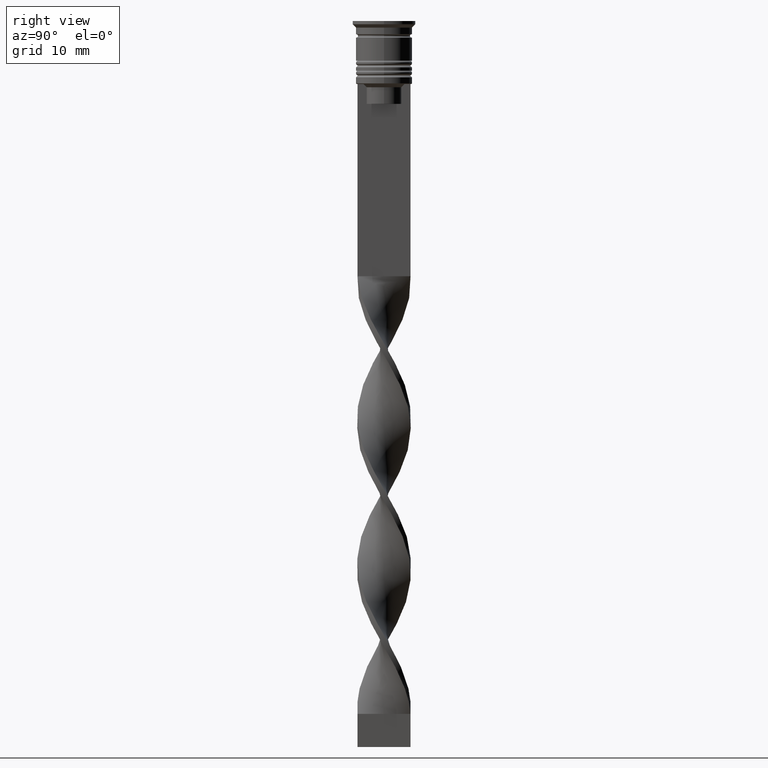
[diagram: clean part render]
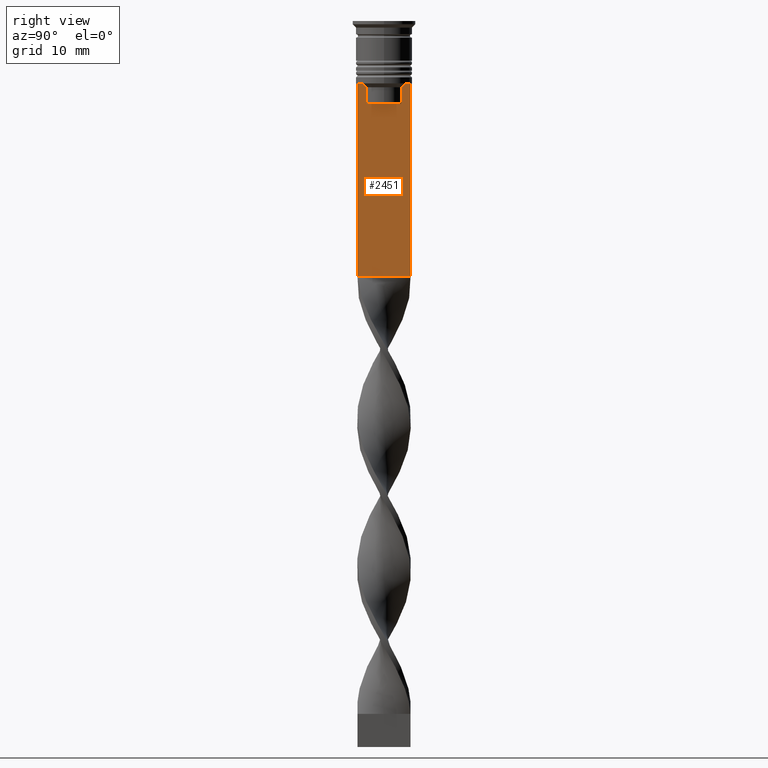
[diagram: same view with one face highlighted and labeled with its STEP entity id]
A machine part, right view. The second image highlights one B-rep face of the part: STEP entity #2451.
In plain terms, the highlighted planar face has unit normal (-1, 0, 0).
Its self-contained STEP definition (entity closure, byte-faithful):
#85 = FACE_OUTER_BOUND ( 'NONE', #1369, .T. ) ;
#137 = CARTESIAN_POINT ( 'NONE',  ( 0.5000000000000000000, 2.771866350855961780, -9.833580160334840059 ) ) ;
#256 = VERTEX_POINT ( 'NONE', #1911 ) ;
#271 = VERTEX_POINT ( 'NONE', #2242 ) ;
#279 = DIRECTION ( 'NONE',  ( 0.000000000000000000, 0.000000000000000000, -1.000000000000000000 ) ) ;
#360 = VECTOR ( 'NONE', #2507, 1000.000000000000000 ) ;
#371 = CARTESIAN_POINT ( 'NONE',  ( 0.5000000000000000000, 3.110064308016796897, -9.500000000000000000 ) ) ;
#397 = CARTESIAN_POINT ( 'NONE',  ( 0.5000000000000000000, -2.602402735934616906, -10.00000000000000178 ) ) ;
#417 = VECTOR ( 'NONE', #279, 1000.000000000000000 ) ;
#499 = DIRECTION ( 'NONE',  ( 0.000000000000000000, 0.000000000000000000, -1.000000000000000000 ) ) ;
#501 = ORIENTED_EDGE ( 'NONE', *, *, #2821, .T. ) ;
#533 = VECTOR ( 'NONE', #2181, 1000.000000000000000 ) ;
#570 = CARTESIAN_POINT ( 'NONE',  ( 0.5000000000000000000, -2.602402735934616906, -12.50000000000000000 ) ) ;
#590 = VECTOR ( 'NONE', #499, 1000.000000000000000 ) ;
#614 = CARTESIAN_POINT ( 'NONE',  ( 0.5000000000000000000, -4.000000000000000000, -9.500000000000000000 ) ) ;
#662 = ORIENTED_EDGE ( 'NONE', *, *, #2476, .T. ) ;
#736 = CARTESIAN_POINT ( 'NONE',  ( 0.5000000000000000000, -4.000000000000000000, -1.437742251701450202 ) ) ;
#975 = PLANE ( 'NONE',  #2454 ) ;
#976 = EDGE_CURVE ( 'NONE', #2062, #256, #2189, .T. ) ;
#1066 = ORIENTED_EDGE ( 'NONE', *, *, #3209, .T. ) ;
#1195 = CARTESIAN_POINT ( 'NONE',  ( 0.5000000000000000000, 2.602402735934616906, -10.00000000000000178 ) ) ;
#1245 = EDGE_CURVE ( 'NONE', #2370, #2804, #1786, .T. ) ;
#1340 = LINE ( 'NONE', #1929, #533 ) ;
#1369 = EDGE_LOOP ( 'NONE', ( #2165, #662, #1066, #2603, #2976, #2396, #501, #1941, #2402, #2996 ) ) ;
#1416 = CARTESIAN_POINT ( 'NONE',  ( 0.5000000000000000000, -4.000000000000000000, -9.500000000000000000 ) ) ;
#1430 = CARTESIAN_POINT ( 'NONE',  ( 0.5000000000000000000, 2.649999999999995914, -12.50000000000000000 ) ) ;
#1432 = B_SPLINE_CURVE_WITH_KNOTS ( 'NONE', 3,
 ( #397, #1502, #2376, #2299 ),
 .UNSPECIFIED., .F., .F.,
 ( 4, 4 ),
 ( 0.01295151922336847811, 0.01367164596165162602 ),
 .UNSPECIFIED. ) ;
#1452 = CARTESIAN_POINT ( 'NONE',  ( 0.5000000000000000000, 2.941047749529105193, -9.666873766989334982 ) ) ;
#1484 = DIRECTION ( 'NONE',  ( 0.000000000000000000, -1.000000000000000000, 0.000000000000000000 ) ) ;
#1502 = CARTESIAN_POINT ( 'NONE',  ( 0.5000000000000000000, -2.771864055700302032, -9.833582414266679450 ) ) ;
#1542 = EDGE_CURVE ( 'NONE', #271, #2465, #1965, .T. ) ;
#1544 = CARTESIAN_POINT ( 'NONE',  ( 0.5000000000000000000, 2.602402735934616906, -12.50000000000000000 ) ) ;
#1615 = B_SPLINE_CURVE_WITH_KNOTS ( 'NONE', 3,
 ( #371, #1452, #137, #1195 ),
 .UNSPECIFIED., .F., .F.,
 ( 4, 4 ),
 ( 0.005378271293598279809, 0.006090816219555997280 ),
 .UNSPECIFIED. ) ;
#1642 = VECTOR ( 'NONE', #2267, 1000.000000000000000 ) ;
#1676 = LINE ( 'NONE', #1416, #360 ) ;
#1769 = CARTESIAN_POINT ( 'NONE',  ( 0.5000000000000000000, 4.000000000000000000, -38.50000000000000000 ) ) ;
#1776 = LINE ( 'NONE', #614, #2684 ) ;
#1786 = LINE ( 'NONE', #2885, #3177 ) ;
#1805 = VERTEX_POINT ( 'NONE', #3431 ) ;
#1854 = CARTESIAN_POINT ( 'NONE',  ( 0.5000000000000000000, -3.110064308016796897, -9.500000000000000000 ) ) ;
#1869 = VECTOR ( 'NONE', #3028, 1000.000000000000000 ) ;
#1911 = CARTESIAN_POINT ( 'NONE',  ( 0.5000000000000000000, -4.000000000000000000, -38.50000000000000000 ) ) ;
#1929 = CARTESIAN_POINT ( 'NONE',  ( 0.5000000000000000000, -4.000000000000000000, -38.50000000000000000 ) ) ;
#1941 = ORIENTED_EDGE ( 'NONE', *, *, #976, .T. ) ;
#1943 = VERTEX_POINT ( 'NONE', #2983 ) ;
#1961 = CARTESIAN_POINT ( 'NONE',  ( 0.5000000000000000000, -4.000000000000000000, -9.500000000000000000 ) ) ;
#1965 = LINE ( 'NONE', #2490, #1869 ) ;
#2029 = DIRECTION ( 'NONE',  ( -1.000000000000000000, 0.000000000000000000, 0.000000000000000000 ) ) ;
#2062 = VERTEX_POINT ( 'NONE', #1961 ) ;
#2082 = CARTESIAN_POINT ( 'NONE',  ( 0.5000000000000000000, -4.000000000000000000, -1.437742251701450202 ) ) ;
#2165 = ORIENTED_EDGE ( 'NONE', *, *, #3233, .T. ) ;
#2181 = DIRECTION ( 'NONE',  ( 0.000000000000000000, 1.000000000000000000, 0.000000000000000000 ) ) ;
#2189 = LINE ( 'NONE', #736, #590 ) ;
#2210 = EDGE_CURVE ( 'NONE', #3546, #2370, #2392, .T. ) ;
#2242 = CARTESIAN_POINT ( 'NONE',  ( 0.5000000000000000000, 4.000000000000000000, -9.500000000000000000 ) ) ;
#2267 = DIRECTION ( 'NONE',  ( 0.000000000000000000, -1.000000000000000000, 0.000000000000000000 ) ) ;
#2299 = CARTESIAN_POINT ( 'NONE',  ( 0.5000000000000000000, -3.110064308016796897, -9.500000000000000000 ) ) ;
#2317 = CARTESIAN_POINT ( 'NONE',  ( 0.5000000000000000000, -2.602402735934616906, -10.00000000000000178 ) ) ;
#2370 = VERTEX_POINT ( 'NONE', #570 ) ;
#2376 = CARTESIAN_POINT ( 'NONE',  ( 0.5000000000000000000, -2.941045828809988105, -9.666875663357579640 ) ) ;
#2392 = LINE ( 'NONE', #1430, #1642 ) ;
#2396 = ORIENTED_EDGE ( 'NONE', *, *, #2655, .T. ) ;
#2402 = ORIENTED_EDGE ( 'NONE', *, *, #3084, .T. ) ;
#2451 = ADVANCED_FACE ( 'NONE', ( #85 ), #975, .F. ) ;
#2454 = AXIS2_PLACEMENT_3D ( 'NONE', #2082, #2029, #2635 ) ;
#2465 = VERTEX_POINT ( 'NONE', #1769 ) ;
#2476 = EDGE_CURVE ( 'NONE', #1805, #1943, #1615, .T. ) ;
#2490 = CARTESIAN_POINT ( 'NONE',  ( 0.5000000000000000000, 4.000000000000000000, -1.437742251701450202 ) ) ;
#2507 = DIRECTION ( 'NONE',  ( 0.000000000000000000, -1.000000000000000000, 0.000000000000000000 ) ) ;
#2603 = ORIENTED_EDGE ( 'NONE', *, *, #2210, .T. ) ;
#2635 = DIRECTION ( 'NONE',  ( 0.000000000000000000, 0.000000000000000000, 1.000000000000000000 ) ) ;
#2655 = EDGE_CURVE ( 'NONE', #2804, #3186, #1432, .T. ) ;
#2684 = VECTOR ( 'NONE', #1484, 1000.000000000000000 ) ;
#2804 = VERTEX_POINT ( 'NONE', #2317 ) ;
#2808 = CARTESIAN_POINT ( 'NONE',  ( 0.5000000000000000000, 2.602402735934616906, 0.000000000000000000 ) ) ;
#2821 = EDGE_CURVE ( 'NONE', #3186, #2062, #1776, .T. ) ;
#2885 = CARTESIAN_POINT ( 'NONE',  ( 0.5000000000000000000, -2.602402735934616906, 0.000000000000000000 ) ) ;
#2976 = ORIENTED_EDGE ( 'NONE', *, *, #1245, .T. ) ;
#2983 = CARTESIAN_POINT ( 'NONE',  ( 0.5000000000000000000, 2.602402735934616906, -10.00000000000000178 ) ) ;
#2996 = ORIENTED_EDGE ( 'NONE', *, *, #1542, .F. ) ;
#3028 = DIRECTION ( 'NONE',  ( 0.000000000000000000, 0.000000000000000000, -1.000000000000000000 ) ) ;
#3084 = EDGE_CURVE ( 'NONE', #256, #2465, #1340, .T. ) ;
#3177 = VECTOR ( 'NONE', #3435, 1000.000000000000000 ) ;
#3186 = VERTEX_POINT ( 'NONE', #1854 ) ;
#3209 = EDGE_CURVE ( 'NONE', #1943, #3546, #3381, .T. ) ;
#3233 = EDGE_CURVE ( 'NONE', #271, #1805, #1676, .T. ) ;
#3381 = LINE ( 'NONE', #2808, #417 ) ;
#3431 = CARTESIAN_POINT ( 'NONE',  ( 0.5000000000000000000, 3.110064308016796897, -9.500000000000000000 ) ) ;
#3435 = DIRECTION ( 'NONE',  ( -0.000000000000000000, -0.000000000000000000, 1.000000000000000000 ) ) ;
#3546 = VERTEX_POINT ( 'NONE', #1544 ) ;